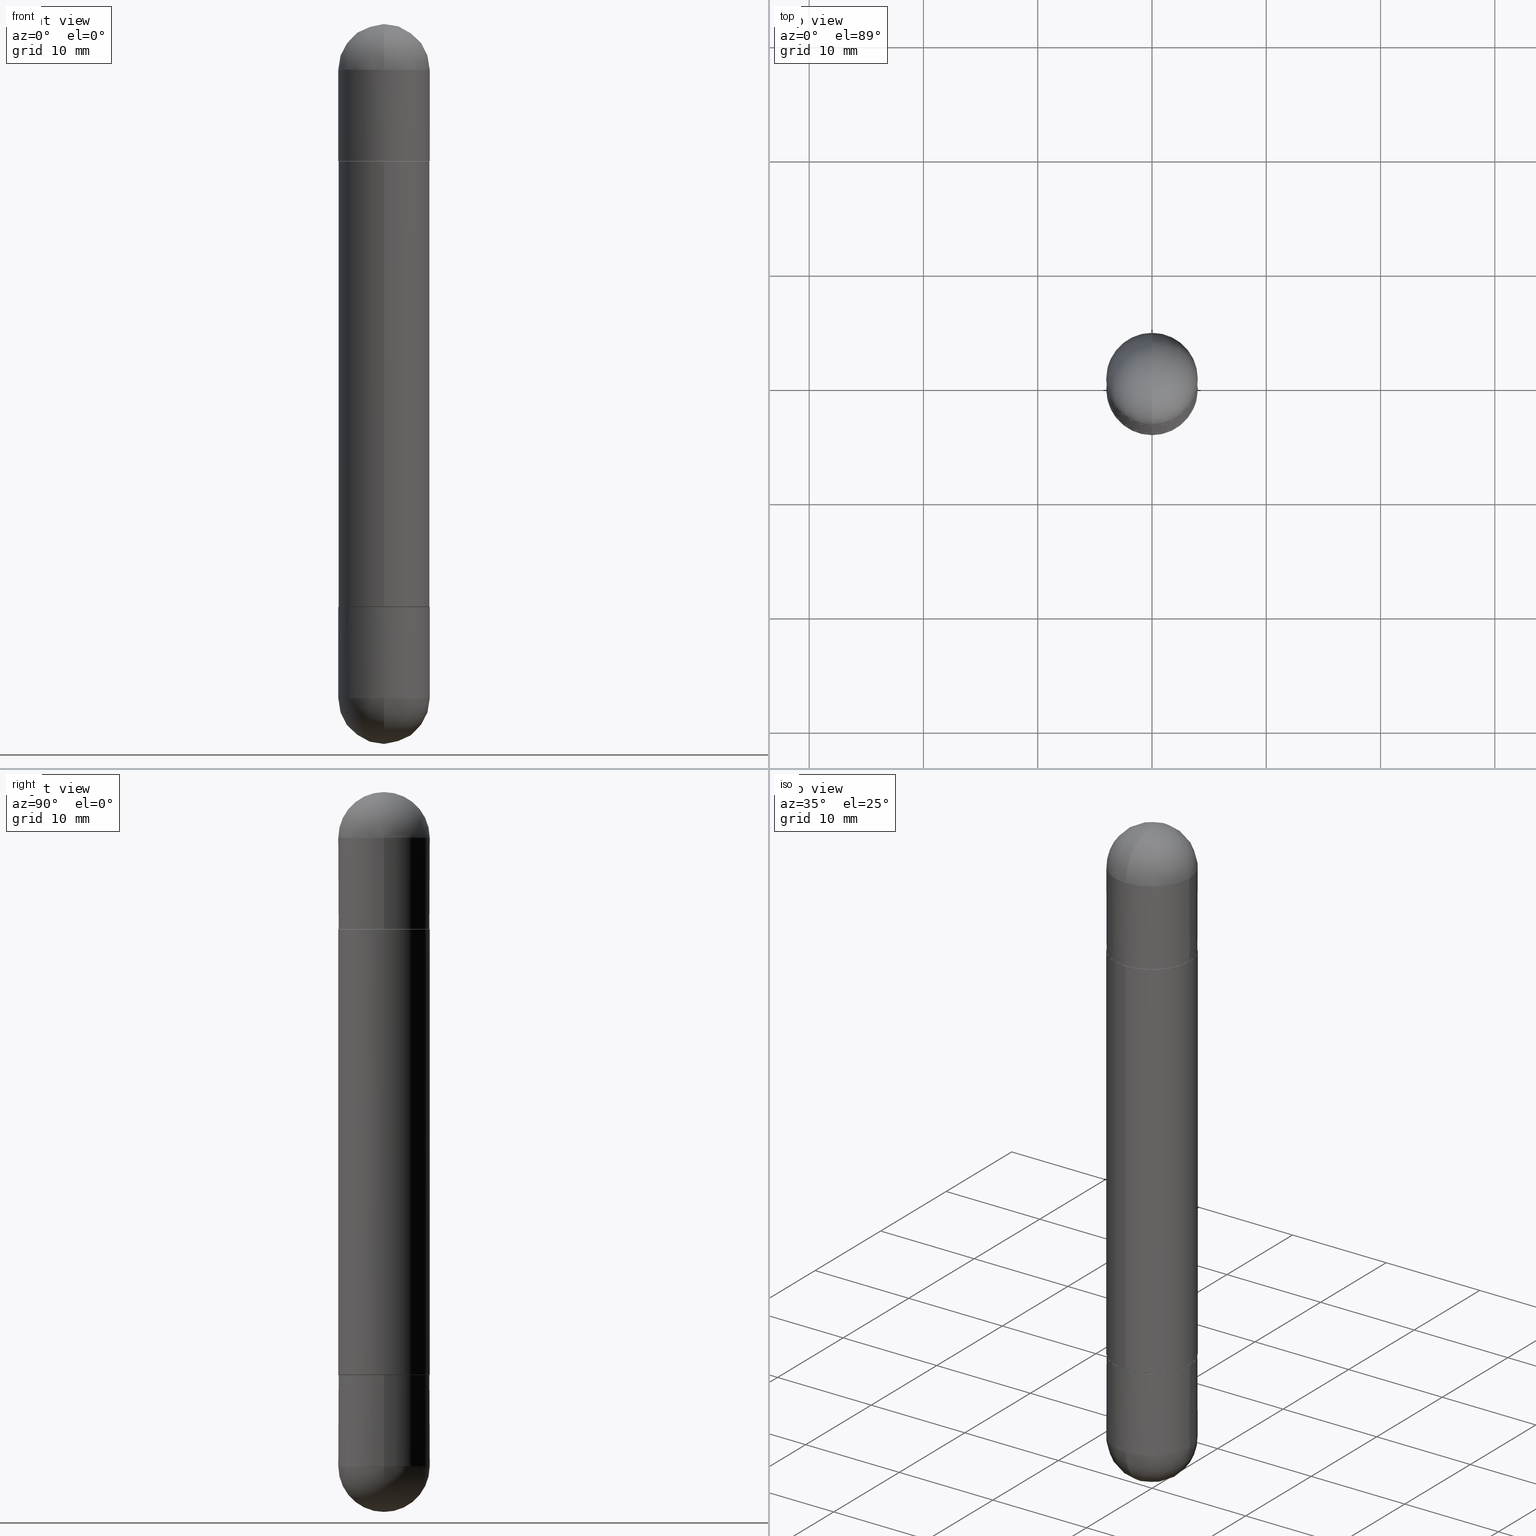
[diagram: canonical four-view strip — front | top / right | iso, engineering-drawing reading convention]
A machine part, canonical four-view strip (front | top / right | iso — engineering-drawing reading convention). The complete STEP part file that produces these views, byte-faithful:
ISO-10303-21;
HEADER;
FILE_DESCRIPTION (( 'STEP AP203' ),
    '1' );
FILE_NAME ('48979.STEP',
    '2024-03-01T12:48:31',
    ( '' ),
    ( '' ),
    'SwSTEP 2.0',
    'SolidWorks 2023',
    '' );
FILE_SCHEMA (( 'CONFIG_CONTROL_DESIGN' ));
ENDSEC;

DATA;
#1 = ORIENTED_EDGE ( 'NONE', *, *, #438, .T. ) ;
#2 = LINE ( 'NONE', #706, #281 ) ;
#3 = CARTESIAN_POINT ( 'NONE',  ( 3.032892176180250989E-29, -4.329754314344569209E-15, -1.240150000000000086 ) ) ;
#4 = EDGE_CURVE ( 'NONE', #603, #650, #86, .T. ) ;
#5 = EDGE_CURVE ( 'NONE', #521, #134, #692, .T. ) ;
#6 = ORIENTED_EDGE ( 'NONE', *, *, #216, .T. ) ;
#7 = COORDINATED_UNIVERSAL_TIME_OFFSET ( 5, 0, .BEHIND. ) ;
#8 = ORIENTED_EDGE ( 'NONE', *, *, #477, .F. ) ;
#9 = CARTESIAN_POINT ( 'NONE',  ( -1.092833659057851571E-15, -0.1565000000000069946, -0.4724000000000004307 ) ) ;
#10 = CARTESIAN_POINT ( 'NONE',  ( 4.910490021813754139E-29, -7.010211416177447985E-15, -0.4723999999999998756 ) ) ;
#11 = CIRCLE ( 'NONE', #390, 0.1565000000000000002 ) ;
#12 = AXIS2_PLACEMENT_3D ( 'NONE', #668, #42, #229 ) ;
#13 = DIRECTION ( 'NONE',  ( 2.445468806185136597E-29, -3.491481338843145583E-15, 1.000000000000000000 ) ) ;
#14 = APPROVAL_STATUS ( 'not_yet_approved' ) ;
#15 = CIRCLE ( 'NONE', #725, 0.1575000000000000011 ) ;
#16 = DIRECTION ( 'NONE',  ( -2.445584950352982136E-29, 3.491315013784275228E-15, -1.000000000000000000 ) ) ;
#17 = CARTESIAN_POINT ( 'NONE',  ( 0.1575000000000000011, -1.099816621735586889E-15, 7.679978421878598033E-30 ) ) ;
#18 = DIRECTION ( 'NONE',  ( -2.445584950352982136E-29, 3.491315013784275228E-15, -1.000000000000000000 ) ) ;
#19 =( NAMED_UNIT ( * ) SI_UNIT ( $, .STERADIAN. ) SOLID_ANGLE_UNIT ( ) );
#20 = DIRECTION ( 'NONE',  ( 2.445468806185136597E-29, -3.491481338843145583E-15, 1.000000000000000000 ) ) ;
#21 = VERTEX_POINT ( 'NONE', #721 ) ;
#22 = DIRECTION ( 'NONE',  ( 6.982962677686265133E-15, 1.000000000000000000, 3.469013325287949743E-15 ) ) ;
#23 = ADVANCED_FACE ( 'NONE', ( #152 ), #714, .T. ) ;
#24 = CIRCLE ( 'NONE', #142, 0.1575000000000000011 ) ;
#25 = VERTEX_POINT ( 'NONE', #147 ) ;
#26 = CIRCLE ( 'NONE', #576, 0.1575000000000000011 ) ;
#27 = ORIENTED_EDGE ( 'NONE', *, *, #548, .T. ) ;
#28 = VECTOR ( 'NONE', #645, 39.37007874015748143 ) ;
#29 = DIRECTION ( 'NONE',  ( 1.000000000000000000, -6.982962677686268288E-15, 0.000000000000000000 ) ) ;
#30 = EDGE_LOOP ( 'NONE', ( #815, #786 ) ) ;
#31 = FACE_OUTER_BOUND ( 'NONE', #393, .T. ) ;
#32 = DIRECTION ( 'NONE',  ( -1.000000000000000000, 6.982962677686265922E-15, 4.883557194083112340E-29 ) ) ;
#33 = CARTESIAN_POINT ( 'NONE',  ( 0.000000000000000000, 0.000000000000000000, 0.000000000000000000 ) ) ;
#34 = EDGE_CURVE ( 'NONE', #801, #669, #624, .T. ) ;
#35 = CARTESIAN_POINT ( 'NONE',  ( -1.092833659057851571E-15, -0.1565000000000069946, -0.4724000000000004307 ) ) ;
#36 = DIRECTION ( 'NONE',  ( -2.445468806185136597E-29, 3.491481338843145583E-15, 1.000000000000000000 ) ) ;
#37 = ORIENTED_EDGE ( 'NONE', *, *, #664, .F. ) ;
#38 = CIRCLE ( 'NONE', #424, 0.1575000000000001399 ) ;
#39 = DIRECTION ( 'NONE',  ( 1.000000000000000000, -6.982962677686268288E-15, 0.000000000000000000 ) ) ;
#40 = CARTESIAN_POINT ( 'NONE',  ( -0.1575000000000000011, -6.479750682414990676E-15, -0.1575000000000001676 ) ) ;
#41 = MANIFOLD_SOLID_BREP ( 'Mirror4[4]', #412 ) ;
#42 = DIRECTION ( 'NONE',  ( -2.445584950352982136E-29, 3.491315013784275228E-15, -1.000000000000000000 ) ) ;
#43 = ADVANCED_FACE ( 'NONE', ( #635 ), #640, .F. ) ;
#44 = ORIENTED_EDGE ( 'NONE', *, *, #536, .T. ) ;
#45 = AXIS2_PLACEMENT_3D ( 'NONE', #33, #36, #745 ) ;
#46 = DIRECTION ( 'NONE',  ( 1.000000000000000000, -6.982962677686265133E-15, -4.883557194083112901E-29 ) ) ;
#47 = VECTOR ( 'NONE', #269, 39.37007874015748143 ) ;
#48 = CARTESIAN_POINT ( 'NONE',  ( 4.910490021813754139E-29, -7.010211416177447985E-15, -0.4723999999999998756 ) ) ;
#49 = ORIENTED_EDGE ( 'NONE', *, *, #800, .F. ) ;
#50 = ORIENTED_EDGE ( 'NONE', *, *, #548, .F. ) ;
#51 = VERTEX_POINT ( 'NONE', #335 ) ;
#52 = ORIENTED_EDGE ( 'NONE', *, *, #664, .T. ) ;
#53 = DIRECTION ( 'NONE',  ( -6.982962677686265922E-15, -1.000000000000000000, -3.491179544618866730E-15 ) ) ;
#54 = DIRECTION ( 'NONE',  ( 2.438088387897960049E-29, -3.491481338843145188E-15, -1.000000000000000000 ) ) ;
#55 = MANIFOLD_SOLID_BREP ( 'Body-Move/Copy2[1]', #777 ) ;
#56 = VERTEX_POINT ( 'NONE', #587 ) ;
#57 = EDGE_LOOP ( 'NONE', ( #670, #50, #396, #369 ) ) ;
#58 = ADVANCED_FACE ( 'NONE', ( #31 ), #525, .T. ) ;
#59 = DIRECTION ( 'NONE',  ( 1.000000000000000000, -6.982962677686268288E-15, 0.000000000000000000 ) ) ;
#60 = PRODUCT_RELATED_PRODUCT_CATEGORY ( 'detail', '', ( #104 ) ) ;
#61 = CYLINDRICAL_SURFACE ( 'NONE', #655, 0.1575000000000001399 ) ;
#62 = ORIENTED_EDGE ( 'NONE', *, *, #5, .T. ) ;
#63 = DIRECTION ( 'NONE',  ( -2.445468806185136877E-29, 3.491481338843145188E-15, -1.000000000000000000 ) ) ;
#64 = CARTESIAN_POINT ( 'NONE',  ( 0.000000000000000000, 0.000000000000000000, -2.480300000000000171 ) ) ;
#65 = CIRCLE ( 'NONE', #403, 0.1565000000000000002 ) ;
#66 = ORIENTED_EDGE ( 'NONE', *, *, #529, .T. ) ;
#67 = CYLINDRICAL_SURFACE ( 'NONE', #154, 0.1575000000000000011 ) ;
#68 = EDGE_CURVE ( 'NONE', #56, #348, #292, .T. ) ;
#69 = CARTESIAN_POINT ( 'NONE',  ( 5.680334943006836279E-29, -8.110012853864858834E-15, -2.322799999999999976 ) ) ;
#70 = EDGE_LOOP ( 'NONE', ( #805, #748 ) ) ;
#71 = APPROVAL_DATE_TIME ( #627, #334 ) ;
#72 = DIRECTION ( 'NONE',  ( -2.445468806185136597E-29, 3.491481338843145583E-15, -1.000000000000000000 ) ) ;
#73 = VERTEX_POINT ( 'NONE', #212 ) ;
#74 = DATE_AND_TIME ( #621, #296 ) ;
#75 = DIRECTION ( 'NONE',  ( 4.851104656540714206E-15, 0.7071067811865135999, -0.7071067811865812125 ) ) ;
#76 = DIRECTION ( 'NONE',  ( -6.982962677686265133E-15, -1.000000000000000000, -3.469013325287950138E-15 ) ) ;
#77 = AXIS2_PLACEMENT_3D ( 'NONE', #551, #113, #610 ) ;
#78 = ADVANCED_FACE ( 'NONE', ( #615 ), #535, .F. ) ;
#79 = VECTOR ( 'NONE', #300, 39.37007874015748143 ) ;
#80 = CARTESIAN_POINT ( 'NONE',  ( 1.099816621735635798E-15, 0.1574999999999930067, -0.4723999999999995980 ) ) ;
#81 = CARTESIAN_POINT ( 'NONE',  ( 3.032892176180250989E-29, -4.329754314344569209E-15, -1.240150000000000086 ) ) ;
#82 = DIRECTION ( 'NONE',  ( 1.000000000000000000, -6.982962677686268288E-15, 0.000000000000000000 ) ) ;
#83 = ADVANCED_FACE ( 'NONE', ( #803 ), #364, .T. ) ;
#84 = CARTESIAN_POINT ( 'NONE',  ( 0.1575000000000000011, -1.099816621735586889E-15, -2.480300000000000171 ) ) ;
#85 = ORIENTED_EDGE ( 'NONE', *, *, #611, .F. ) ;
#86 = LINE ( 'NONE', #718, #441 ) ;
#87 = CARTESIAN_POINT ( 'NONE',  ( 5.741110936594397103E-29, -9.124459439329419387E-15, -2.480300000000000171 ) ) ;
#88 = ORIENTED_EDGE ( 'NONE', *, *, #274, .T. ) ;
#89 = AXIS2_PLACEMENT_3D ( 'NONE', #343, #659, #39 ) ;
#90 = FACE_OUTER_BOUND ( 'NONE', #487, .T. ) ;
#91 = ADVANCED_FACE ( 'NONE', ( #729 ), #423, .F. ) ;
#92 = FACE_OUTER_BOUND ( 'NONE', #30, .T. ) ;
#93 = CARTESIAN_POINT ( 'NONE',  ( 4.908044436863399835E-29, -7.006720101163662499E-15, -0.4734000000000002095 ) ) ;
#94 = CARTESIAN_POINT ( 'NONE',  ( 1.099816621735642503E-15, 0.1574999999999917577, -2.322800000000000864 ) ) ;
#95 = EDGE_LOOP ( 'NONE', ( #498, #66, #574, #303 ) ) ;
#96 = ADVANCED_FACE ( 'NONE', ( #421 ), #277, .F. ) ;
#97 = AXIS2_PLACEMENT_3D ( 'NONE', #251, #141, #519 ) ;
#98 = AXIS2_PLACEMENT_3D ( 'NONE', #530, #586, #285 ) ;
#99 = CARTESIAN_POINT ( 'NONE',  ( -0.1575000000000000011, 1.080528434649016174E-15, -2.480300000000000171 ) ) ;
#100 = ADVANCED_FACE ( 'NONE', ( #305 ), #256, .T. ) ;
#101 = CARTESIAN_POINT ( 'NONE',  ( -1.099816621735547840E-15, -0.1575000000000044698, -1.240150000000000086 ) ) ;
#102 = APPLICATION_CONTEXT ( 'configuration controlled 3d designs of mechanical parts and assemblies' ) ;
#103 = VERTEX_POINT ( 'NONE', #357 ) ;
#104 = PRODUCT ( '48979', '48979', '', ( #553 ) ) ;
#105 = DIRECTION ( 'NONE',  ( -2.445584950352982136E-29, 3.491315013784275228E-15, 1.000000000000000000 ) ) ;
#106 = ORIENTED_EDGE ( 'NONE', *, *, #582, .T. ) ;
#107 = CARTESIAN_POINT ( 'NONE',  ( -1.099816621735539754E-15, -0.1575000000000072453, -0.4734000000000007646 ) ) ;
#108 = ORIENTED_EDGE ( 'NONE', *, *, #321, .F. ) ;
#109 = CIRCLE ( 'NONE', #762, 0.1575000000000000011 ) ;
#110 = CARTESIAN_POINT ( 'NONE',  ( 4.910256815939136430E-29, -7.010545380263152499E-15, -0.4724000000000001531 ) ) ;
#111 = ORIENTED_EDGE ( 'NONE', *, *, #520, .T. ) ;
#112 = AXIS2_PLACEMENT_3D ( 'NONE', #629, #810, #264 ) ;
#113 = DIRECTION ( 'NONE',  ( 1.000000000000000000, -6.982962677686265922E-15, 4.883557194083112340E-29 ) ) ;
#114 = CC_DESIGN_APPROVAL ( #334, ( #814 ) ) ;
#115 = EDGE_CURVE ( 'NONE', #669, #543, #24, .T. ) ;
#116 = ORIENTED_EDGE ( 'NONE', *, *, #205, .F. ) ;
#117 = DIRECTION ( 'NONE',  ( 1.000000000000000000, -6.860497997771530774E-15, -4.840798879624142912E-29 ) ) ;
#118 = DIRECTION ( 'NONE',  ( 1.000000000000000000, -6.982962677686268288E-15, 0.000000000000000000 ) ) ;
#119 = ORIENTED_EDGE ( 'NONE', *, *, #170, .F. ) ;
#120 = CARTESIAN_POINT ( 'NONE',  ( 0.000000000000000000, 0.000000000000000000, 0.000000000000000000 ) ) ;
#121 = FACE_OUTER_BOUND ( 'NONE', #261, .T. ) ;
#122 = CARTESIAN_POINT ( 'NONE',  ( 1.080528434649016963E-15, 0.1575000000000001399, -2.480299999999999727 ) ) ;
#123 = ORIENTED_EDGE ( 'NONE', *, *, #149, .F. ) ;
#124 = APPROVAL_STATUS ( 'not_yet_approved' ) ;
#125 = LINE ( 'NONE', #140, #482 ) ;
#126 = CARTESIAN_POINT ( 'NONE',  ( 0.000000000000000000, 0.000000000000000000, -2.480300000000000171 ) ) ;
#127 = VECTOR ( 'NONE', #183, 39.37007874015748143 ) ;
#128 = CIRCLE ( 'NONE', #679, 0.1575000000000002232 ) ;
#129 = ORIENTED_EDGE ( 'NONE', *, *, #811, .T. ) ;
#130 = DATE_AND_TIME ( #202, #282 ) ;
#131 = FACE_OUTER_BOUND ( 'NONE', #185, .T. ) ;
#132 = EDGE_CURVE ( 'NONE', #492, #196, #151, .T. ) ;
#133 = CARTESIAN_POINT ( 'NONE',  ( 0.000000000000000000, 0.000000000000000000, -2.480300000000000171 ) ) ;
#134 = VERTEX_POINT ( 'NONE', #596 ) ;
#135 = DIRECTION ( 'NONE',  ( -2.445584950352982136E-29, 3.491315013784275228E-15, -1.000000000000000000 ) ) ;
#136 = FACE_OUTER_BOUND ( 'NONE', #557, .T. ) ;
#137 = VERTEX_POINT ( 'NONE', #107 ) ;
#138 = SECURITY_CLASSIFICATION_LEVEL ( 'unclassified' ) ;
#139 = ORIENTED_EDGE ( 'NONE', *, *, #170, .T. ) ;
#140 = CARTESIAN_POINT ( 'NONE',  ( 0.1575000000000000011, -1.099816621735586889E-15, -2.480300000000000171 ) ) ;
#141 = DIRECTION ( 'NONE',  ( -2.445468806185136597E-29, 3.491481338843145583E-15, 1.000000000000000000 ) ) ;
#142 = AXIS2_PLACEMENT_3D ( 'NONE', #675, #428, #118 ) ;
#143 = CIRCLE ( 'NONE', #227, 0.1575000000000001676 ) ;
#144 = ADVANCED_FACE ( 'NONE', ( #531 ), #660, .T. ) ;
#145 = ORIENTED_EDGE ( 'NONE', *, *, #4, .F. ) ;
#146 = DIRECTION ( 'NONE',  ( 2.445584950352982136E-29, -3.491315013784275228E-15, 1.000000000000000000 ) ) ;
#147 = CARTESIAN_POINT ( 'NONE',  ( 0.1575000000000000011, -8.660095738799594725E-15, -2.322799999999999976 ) ) ;
#148 = CARTESIAN_POINT ( 'NONE',  ( 4.910490021813754139E-29, -7.010211416177447985E-15, -0.4723999999999998756 ) ) ;
#149 = EDGE_CURVE ( 'NONE', #526, #240, #11, .T. ) ;
#150 = FACE_OUTER_BOUND ( 'NONE', #70, .T. ) ;
#151 = CIRCLE ( 'NONE', #77, 0.1575000000000001676 ) ;
#152 = FACE_OUTER_BOUND ( 'NONE', #233, .T. ) ;
#153 = AXIS2_PLACEMENT_3D ( 'NONE', #682, #367, #245 ) ;
#154 = AXIS2_PLACEMENT_3D ( 'NONE', #243, #768, #701 ) ;
#155 = SPHERICAL_SURFACE ( 'NONE', #491, 0.1575000000000001676 ) ;
#156 = DIRECTION ( 'NONE',  ( -6.982962677686265922E-15, -1.000000000000000000, -3.491315013784275228E-15 ) ) ;
#157 = EDGE_LOOP ( 'NONE', ( #272, #111, #508, #564, #291 ) ) ;
#158 = DIRECTION ( 'NONE',  ( 1.000000000000000000, -6.982962677686268288E-15, 0.000000000000000000 ) ) ;
#159 = LINE ( 'NONE', #99, #79 ) ;
#160 = ADVANCED_FACE ( 'NONE', ( #788 ), #61, .T. ) ;
#161 = VERTEX_POINT ( 'NONE', #280 ) ;
#162 = CIRCLE ( 'NONE', #308, 0.1575000000000000011 ) ;
#163 = CONICAL_SURFACE ( 'NONE', #294, 0.1565000000000000002, 0.7853981633973970977 ) ;
#164 = DIRECTION ( 'NONE',  ( -6.982962677686265922E-15, -1.000000000000000000, -3.469013325287948560E-15 ) ) ;
#165 = LOCAL_TIME ( 7, 48, 31.00000000000000000, #370 ) ;
#166 = ORIENTED_EDGE ( 'NONE', *, *, #568, .F. ) ;
#167 = CARTESIAN_POINT ( 'NONE',  ( 4.910490021813754139E-29, -7.010211416177447985E-15, -2.007900000000000240 ) ) ;
#168 = CARTESIAN_POINT ( 'NONE',  ( 4.908044436863399835E-29, -7.006720101163662499E-15, -2.006899999999999906 ) ) ;
#169 = CARTESIAN_POINT ( 'NONE',  ( 4.910490021813753578E-29, -7.010211416177447196E-15, -0.4724000000000001531 ) ) ;
#170 = EDGE_CURVE ( 'NONE', #569, #475, #469, .T. ) ;
#171 = ORIENTED_EDGE ( 'NONE', *, *, #638, .T. ) ;
#172 = DIRECTION ( 'NONE',  ( -1.000000000000000000, 6.982962677686265922E-15, 4.883557194083112340E-29 ) ) ;
#173 = EDGE_LOOP ( 'NONE', ( #145, #383, #588, #430, #322 ) ) ;
#174 = EDGE_LOOP ( 'NONE', ( #620, #354, #44, #716 ) ) ;
#175 = AXIS2_PLACEMENT_3D ( 'NONE', #513, #201, #452 ) ;
#176 = DIRECTION ( 'NONE',  ( 6.982962677686265133E-15, 1.000000000000000000, 3.469013325287949743E-15 ) ) ;
#177 = AXIS2_PLACEMENT_3D ( 'NONE', #110, #614, #681 ) ;
#178 = DIRECTION ( 'NONE',  ( -6.982962677686265922E-15, -1.000000000000000000, 3.491179544618866730E-15 ) ) ;
#179 = EDGE_LOOP ( 'NONE', ( #496, #753 ) ) ;
#180 = DATE_AND_TIME ( #440, #560 ) ;
#181 = CARTESIAN_POINT ( 'NONE',  ( 1.073667936651293668E-15, 0.1564999999999929781, -0.4723999999999993205 ) ) ;
#182 = ADVANCED_BREP_SHAPE_REPRESENTATION ( '48979', ( #55, #606, #319, #41, #314, #667 ), #602 ) ;
#183 = DIRECTION ( 'NONE',  ( -2.445468806185136877E-29, 3.491481338843145188E-15, 1.000000000000000000 ) ) ;
#184 = EDGE_CURVE ( 'NONE', #478, #663, #143, .T. ) ;
#185 = EDGE_LOOP ( 'NONE', ( #119, #171, #211, #206 ) ) ;
#186 = LENGTH_MEASURE_WITH_UNIT ( LENGTH_MEASURE( 0.02539999999999999897 ), #817 );
#187 = APPROVAL ( #323, 'UNSPECIFIED' ) ;
#188 = DIRECTION ( 'NONE',  ( -2.445584950352982136E-29, 3.491315013784275228E-15, -1.000000000000000000 ) ) ;
#189 = EDGE_LOOP ( 'NONE', ( #328, #439, #368, #1, #88 ) ) ;
#190 = APPLICATION_PROTOCOL_DEFINITION ( 'international standard', 'config_control_design', 1994, #102 ) ;
#191 = ADVANCED_FACE ( 'NONE', ( #92 ), #472, .F. ) ;
#192 = CARTESIAN_POINT ( 'NONE',  ( 1.115552095143406798E-15, 0.1564999999999929781, -2.007900000000001128 ) ) ;
#193 = DIRECTION ( 'NONE',  ( -2.445468806185136597E-29, 3.491481338843145583E-15, -1.000000000000000000 ) ) ;
#194 = VECTOR ( 'NONE', #458, 39.37007874015748143 ) ;
#195 = AXIS2_PLACEMENT_3D ( 'NONE', #93, #146, #220 ) ;
#196 = VERTEX_POINT ( 'NONE', #94 ) ;
#197 = DATE_TIME_ROLE ( 'creation_date' ) ;
#198 = ORIENTED_EDGE ( 'NONE', *, *, #382, .T. ) ;
#199 = CARTESIAN_POINT ( 'NONE',  ( 4.910490021813754139E-29, -7.010211416177447985E-15, -2.007900000000000240 ) ) ;
#200 = CARTESIAN_POINT ( 'NONE',  ( 1.099816621735635798E-15, 0.1574999999999930067, -0.4723999999999995980 ) ) ;
#201 = DIRECTION ( 'NONE',  ( 1.000000000000000000, -6.982962677686265133E-15, -4.883557194083112901E-29 ) ) ;
#202 = CALENDAR_DATE ( 2024, 1, 3 ) ;
#203 = CARTESIAN_POINT ( 'NONE',  ( 1.073667936651293668E-15, 0.1564999999999929781, -0.4723999999999993205 ) ) ;
#204 = DIRECTION ( 'NONE',  ( 2.438088387897960049E-29, -3.491481338843145188E-15, 1.000000000000000000 ) ) ;
#205 = EDGE_CURVE ( 'NONE', #492, #215, #258, .T. ) ;
#206 = ORIENTED_EDGE ( 'NONE', *, *, #776, .F. ) ;
#207 = DIRECTION ( 'NONE',  ( 2.445468806185136597E-29, -3.491481338843145583E-15, 1.000000000000000000 ) ) ;
#208 = AXIS2_PLACEMENT_3D ( 'NONE', #278, #473, #720 ) ;
#209 = CARTESIAN_POINT ( 'NONE',  ( 4.910256815939136430E-29, -7.010545380263152499E-15, -0.4724000000000001531 ) ) ;
#210 = DIRECTION ( 'NONE',  ( 6.982962677686265133E-15, 1.000000000000000000, -3.469013325287949743E-15 ) ) ;
#211 = ORIENTED_EDGE ( 'NONE', *, *, #347, .F. ) ;
#212 = CARTESIAN_POINT ( 'NONE',  ( -1.092833659057851571E-15, -0.1565000000000069946, -2.007899999999999796 ) ) ;
#213 = ORIENTED_EDGE ( 'NONE', *, *, #719, .T. ) ;
#214 = FACE_OUTER_BOUND ( 'NONE', #715, .T. ) ;
#215 = VERTEX_POINT ( 'NONE', #474 ) ;
#216 = EDGE_CURVE ( 'NONE', #313, #252, #360, .T. ) ;
#217 = CARTESIAN_POINT ( 'NONE',  ( 5.680334943006836279E-29, -8.110012853864858834E-15, -0.1575000000000001676 ) ) ;
#218 = AXIS2_PLACEMENT_3D ( 'NONE', #707, #20, #437 ) ;
#219 = DIRECTION ( 'NONE',  ( 0.000000000000000000, 0.000000000000000000, 1.000000000000000000 ) ) ;
#220 = DIRECTION ( 'NONE',  ( -6.982962677686265922E-15, -1.000000000000000000, -3.469013325287948560E-15 ) ) ;
#221 = DIRECTION ( 'NONE',  ( -7.105427357601000281E-15, -1.000000000000000000, 0.000000000000000000 ) ) ;
#222 = DIRECTION ( 'NONE',  ( 2.445584950352982136E-29, -3.491315013784275228E-15, 1.000000000000000000 ) ) ;
#223 = DESIGN_CONTEXT ( 'detailed design', #102, 'design' ) ;
#224 = EDGE_CURVE ( 'NONE', #25, #386, #818, .T. ) ;
#225 = SPHERICAL_SURFACE ( 'NONE', #228, 0.1575000000000001676 ) ;
#226 = CLOSED_SHELL ( 'NONE', ( #782, #467, #96, #507, #284, #160 ) ) ;
#227 = AXIS2_PLACEMENT_3D ( 'NONE', #486, #172, #404 ) ;
#228 = AXIS2_PLACEMENT_3D ( 'NONE', #743, #46, #176 ) ;
#229 = DIRECTION ( 'NONE',  ( -6.982962677686265922E-15, -1.000000000000000000, -3.491179544618866730E-15 ) ) ;
#230 = CC_DESIGN_APPROVAL ( #738, ( #479 ) ) ;
#231 = EDGE_CURVE ( 'NONE', #161, #528, #38, .T. ) ;
#232 = DIRECTION ( 'NONE',  ( -2.445584950352981856E-29, 3.491315013784275228E-15, -1.000000000000000000 ) ) ;
#233 = EDGE_LOOP ( 'NONE', ( #85, #456, #626, #708 ) ) ;
#234 = CARTESIAN_POINT ( 'NONE',  ( 4.910490021813753578E-29, -7.010211416177447196E-15, -2.007900000000000240 ) ) ;
#235 = ORIENTED_EDGE ( 'NONE', *, *, #539, .T. ) ;
#236 = ORIENTED_EDGE ( 'NONE', *, *, #477, .T. ) ;
#237 = CARTESIAN_POINT ( 'NONE',  ( -0.1575000000000000011, -6.441174308241848852E-15, -2.322799999999999976 ) ) ;
#238 = EDGE_LOOP ( 'NONE', ( #693, #483, #62, #570, #312 ) ) ;
#239 = CARTESIAN_POINT ( 'NONE',  ( 1.099816621735635798E-15, 0.1574999999999930067, -2.007900000000000684 ) ) ;
#240 = VERTEX_POINT ( 'NONE', #773 ) ;
#241 = PERSON_AND_ORGANIZATION ( #355, #592 ) ;
#242 = CIRCLE ( 'NONE', #746, 0.1575000000000000011 ) ;
#243 = CARTESIAN_POINT ( 'NONE',  ( 0.000000000000000000, 0.000000000000000000, -2.480300000000000171 ) ) ;
#244 = AXIS2_PLACEMENT_3D ( 'NONE', #480, #356, #164 ) ;
#245 = DIRECTION ( 'NONE',  ( 1.000000000000000000, -6.982962677686265922E-15, 0.000000000000000000 ) ) ;
#246 = ORIENTED_EDGE ( 'NONE', *, *, #515, .T. ) ;
#247 = DIRECTION ( 'NONE',  ( 1.000000000000000000, -6.982962677686268288E-15, 0.000000000000000000 ) ) ;
#248 = ADVANCED_FACE ( 'NONE', ( #583 ), #579, .T. ) ;
#249 = ORIENTED_EDGE ( 'NONE', *, *, #263, .T. ) ;
#250 = CARTESIAN_POINT ( 'NONE',  ( 5.680334943006836279E-29, -8.110012853864858834E-15, -0.1575000000000001676 ) ) ;
#251 = CARTESIAN_POINT ( 'NONE',  ( 0.000000000000000000, 0.000000000000000000, 0.000000000000000000 ) ) ;
#252 = VERTEX_POINT ( 'NONE', #326 ) ;
#253 = EDGE_LOOP ( 'NONE', ( #808, #742, #784, #236 ) ) ;
#254 = DIRECTION ( 'NONE',  ( 2.445468806185136597E-29, -3.491481338843145583E-15, 1.000000000000000000 ) ) ;
#255 = AXIS2_PLACEMENT_3D ( 'NONE', #275, #18, #266 ) ;
#256 = CONICAL_SURFACE ( 'NONE', #573, 0.1565000000000000002, 0.7853981633973970977 ) ;
#257 = DIRECTION ( 'NONE',  ( 1.000000000000000000, -6.982962677686265922E-15, 0.000000000000000000 ) ) ;
#258 = CIRCLE ( 'NONE', #350, 0.1575000000000001676 ) ;
#259 = AXIS2_PLACEMENT_3D ( 'NONE', #750, #755, #636 ) ;
#260 = ADVANCED_FACE ( 'NONE', ( #267 ), #391, .F. ) ;
#261 = EDGE_LOOP ( 'NONE', ( #52, #425, #395, #298 ) ) ;
#262 = APPROVAL_DATE_TIME ( #180, #738 ) ;
#263 = EDGE_CURVE ( 'NONE', #546, #51, #26, .T. ) ;
#264 = DIRECTION ( 'NONE',  ( -6.982962677686265922E-15, -1.000000000000000000, -3.491179544618866730E-15 ) ) ;
#265 = DIRECTION ( 'NONE',  ( -2.445584950352982136E-29, 3.491315013784275228E-15, 1.000000000000000000 ) ) ;
#266 = DIRECTION ( 'NONE',  ( -6.982962677686265133E-15, -1.000000000000000000, -3.469013325287950138E-15 ) ) ;
#267 = FACE_OUTER_BOUND ( 'NONE', #699, .T. ) ;
#268 = VERTEX_POINT ( 'NONE', #451 ) ;
#269 = DIRECTION ( 'NONE',  ( -2.445468806185136877E-29, 3.491481338843145188E-15, -1.000000000000000000 ) ) ;
#270 = CIRCLE ( 'NONE', #723, 0.1575000000000000011 ) ;
#271 = VECTOR ( 'NONE', #795, 39.37007874015748854 ) ;
#272 = ORIENTED_EDGE ( 'NONE', *, *, #34, .F. ) ;
#273 = DIRECTION ( 'NONE',  ( -1.000000000000000000, 6.982962677686265133E-15, -4.883557194083112901E-29 ) ) ;
#274 = EDGE_CURVE ( 'NONE', #103, #268, #612, .T. ) ;
#275 = CARTESIAN_POINT ( 'NONE',  ( 0.000000000000000000, 0.000000000000000000, -2.480300000000000171 ) ) ;
#276 = LINE ( 'NONE', #84, #47 ) ;
#277 = PLANE ( 'NONE',  #761 ) ;
#278 = CARTESIAN_POINT ( 'NONE',  ( 5.349215165092950032E-29, -8.584195222004910708E-15, -0.1574999999999998901 ) ) ;
#279 = AXIS2_PLACEMENT_3D ( 'NONE', #10, #769, #381 ) ;
#280 = CARTESIAN_POINT ( 'NONE',  ( 1.080528434649065872E-15, 0.1574999999999957823, -1.240150000000000086 ) ) ;
#281 = VECTOR ( 'NONE', #432, 39.37007874015748143 ) ;
#282 = LOCAL_TIME ( 7, 48, 31.00000000000000000, #497 ) ;
#283 = DIMENSIONAL_EXPONENTS ( 1.000000000000000000, 0.000000000000000000, 0.000000000000000000, 0.000000000000000000, 0.000000000000000000, 0.000000000000000000, 0.000000000000000000 ) ;
#284 = ADVANCED_FACE ( 'NONE', ( #136 ), #643, .T. ) ;
#285 = DIRECTION ( 'NONE',  ( -6.982962677686265922E-15, -1.000000000000000000, -3.491179544618866730E-15 ) ) ;
#286 = CARTESIAN_POINT ( 'NONE',  ( 5.349215165092950032E-29, -8.584195222004910708E-15, -0.1574999999999998901 ) ) ;
#287 = FACE_OUTER_BOUND ( 'NONE', #648, .T. ) ;
#288 = ORIENTED_EDGE ( 'NONE', *, *, #481, .T. ) ;
#289 = ADVANCED_FACE ( 'NONE', ( #647 ), #702, .T. ) ;
#290 = EDGE_CURVE ( 'NONE', #196, #603, #589, .T. ) ;
#291 = ORIENTED_EDGE ( 'NONE', *, *, #115, .F. ) ;
#292 = CIRCLE ( 'NONE', #401, 0.1565000000000000002 ) ;
#293 = AXIS2_PLACEMENT_3D ( 'NONE', #807, #751, #793 ) ;
#294 = AXIS2_PLACEMENT_3D ( 'NONE', #199, #389, #578 ) ;
#295 = DIRECTION ( 'NONE',  ( -6.982962677686265922E-15, -1.000000000000000000, 3.491179544618866730E-15 ) ) ;
#296 = LOCAL_TIME ( 7, 48, 31.00000000000000000, #453 ) ;
#297 = DIRECTION ( 'NONE',  ( 2.445584950352982136E-29, -3.491315013784275228E-15, 1.000000000000000000 ) ) ;
#298 = ORIENTED_EDGE ( 'NONE', *, *, #539, .F. ) ;
#299 = ORIENTED_EDGE ( 'NONE', *, *, #619, .F. ) ;
#300 = DIRECTION ( 'NONE',  ( -2.445468806185136877E-29, 3.491481338843145188E-15, -1.000000000000000000 ) ) ;
#301 = CARTESIAN_POINT ( 'NONE',  ( 0.000000000000000000, 0.000000000000000000, -1.240150000000000086 ) ) ;
#302 = ORIENTED_EDGE ( 'NONE', *, *, #115, .T. ) ;
#303 = ORIENTED_EDGE ( 'NONE', *, *, #673, .T. ) ;
#304 = CARTESIAN_POINT ( 'NONE',  ( -1.099816621735587677E-15, -0.1575000000000001399, -2.480300000000001059 ) ) ;
#305 = FACE_OUTER_BOUND ( 'NONE', #662, .T. ) ;
#306 = ORIENTED_EDGE ( 'NONE', *, *, #132, .T. ) ;
#307 = PERSON_AND_ORGANIZATION ( #355, #592 ) ;
#308 = AXIS2_PLACEMENT_3D ( 'NONE', #600, #523, #792 ) ;
#309 = EDGE_CURVE ( 'NONE', #21, #313, #686, .T. ) ;
#310 = CIRCLE ( 'NONE', #471, 0.1575000000000001676 ) ;
#311 = DIRECTION ( 'NONE',  ( -2.445468806185136597E-29, 3.491481338843145583E-15, 1.000000000000000000 ) ) ;
#312 = ORIENTED_EDGE ( 'NONE', *, *, #728, .F. ) ;
#313 = VERTEX_POINT ( 'NONE', #320 ) ;
#314 = MANIFOLD_SOLID_BREP ( 'Combine1', #709 ) ;
#315 = CARTESIAN_POINT ( 'NONE',  ( 0.000000000000000000, 0.000000000000000000, -2.480300000000000171 ) ) ;
#316 = CARTESIAN_POINT ( 'NONE',  ( 5.680334943006836279E-29, -8.110012853864858834E-15, -2.322799999999999976 ) ) ;
#317 = ORIENTED_EDGE ( 'NONE', *, *, #4, .T. ) ;
#318 = DIRECTION ( 'NONE',  ( -6.982962677686265922E-15, -1.000000000000000000, 3.469013325287948560E-15 ) ) ;
#319 = MANIFOLD_SOLID_BREP ( 'Mirror4[3]', #654 ) ;
#320 = CARTESIAN_POINT ( 'NONE',  ( 1.080528434649047531E-15, 0.1574999999999932287, -2.006900000000000794 ) ) ;
#321 = EDGE_CURVE ( 'NONE', #215, #25, #242, .T. ) ;
#322 = ORIENTED_EDGE ( 'NONE', *, *, #481, .F. ) ;
#323 = APPROVAL_STATUS ( 'not_yet_approved' ) ;
#324 = FACE_OUTER_BOUND ( 'NONE', #238, .T. ) ;
#325 = AXIS2_PLACEMENT_3D ( 'NONE', #3, #504, #445 ) ;
#326 = CARTESIAN_POINT ( 'NONE',  ( -1.099816621735539360E-15, -0.1575000000000072453, -2.006899999999999462 ) ) ;
#327 = VECTOR ( 'NONE', #450, 39.37007874015748143 ) ;
#328 = ORIENTED_EDGE ( 'NONE', *, *, #520, .F. ) ;
#329 = EDGE_LOOP ( 'NONE', ( #116, #306, #466, #108 ) ) ;
#330 = DIRECTION ( 'NONE',  ( -1.000000000000000000, 0.000000000000000000, 0.000000000000000000 ) ) ;
#331 = ORIENTED_EDGE ( 'NONE', *, *, #713, .T. ) ;
#332 = EDGE_CURVE ( 'NONE', #603, #215, #270, .T. ) ;
#333 = CARTESIAN_POINT ( 'NONE',  ( 4.910256815939136430E-29, -7.010545380263152499E-15, -2.007900000000000240 ) ) ;
#334 = APPROVAL ( #14, 'UNSPECIFIED' ) ;
#335 = CARTESIAN_POINT ( 'NONE',  ( -1.080528434648961545E-15, -0.1575000000000084388, -0.1575000000000007228 ) ) ;
#336 = ORIENTED_EDGE ( 'NONE', *, *, #529, .F. ) ;
#337 = CARTESIAN_POINT ( 'NONE',  ( 0.1575000000000000011, -8.110362001998739191E-15, -2.007900000000000240 ) ) ;
#338 = ADVANCED_FACE ( 'NONE', ( #572 ), #691, .T. ) ;
#339 = AXIS2_PLACEMENT_3D ( 'NONE', #168, #265, #517 ) ;
#340 = CIRCLE ( 'NONE', #780, 0.1575000000000000011 ) ;
#341 = DIRECTION ( 'NONE',  ( 2.445468806185136597E-29, -3.491481338843145583E-15, 1.000000000000000000 ) ) ;
#342 = ORIENTED_EDGE ( 'NONE', *, *, #611, .T. ) ;
#343 = CARTESIAN_POINT ( 'NONE',  ( 5.680334943006836279E-29, -8.110012853864858834E-15, -2.322799999999999976 ) ) ;
#344 = DIRECTION ( 'NONE',  ( -1.000000000000000000, 0.000000000000000000, 0.000000000000000000 ) ) ;
#345 = CARTESIAN_POINT ( 'NONE',  ( 5.741110936594397103E-29, -9.124459439329419387E-15, 2.731847993664263218E-16 ) ) ;
#346 = CARTESIAN_POINT ( 'NONE',  ( 5.349215165092950032E-29, -8.584195222004910708E-15, -2.322800000000000420 ) ) ;
#347 = EDGE_CURVE ( 'NONE', #528, #161, #376, .T. ) ;
#348 = VERTEX_POINT ( 'NONE', #760 ) ;
#349 = CARTESIAN_POINT ( 'NONE',  ( 5.349215165092950032E-29, -8.584195222004910708E-15, -0.1574999999999998901 ) ) ;
#350 = AXIS2_PLACEMENT_3D ( 'NONE', #346, #598, #221 ) ;
#351 = DIRECTION ( 'NONE',  ( -6.982962677686265922E-15, -1.000000000000000000, -3.469013325287948560E-15 ) ) ;
#352 = ADVANCED_FACE ( 'NONE', ( #634 ), #698, .T. ) ;
#353 = CARTESIAN_POINT ( 'NONE',  ( 4.910256815939136430E-29, -7.010545380263152499E-15, -2.007900000000000240 ) ) ;
#354 = ORIENTED_EDGE ( 'NONE', *, *, #767, .T. ) ;
#355 = PERSON ( 'UNSPECIFIED', 'UNSPECIFIED', 'UNSPECIFIED', ('UNSPECIFIED'), ('UNSPECIFIED'), ('UNSPECIFIED') ) ;
#356 = DIRECTION ( 'NONE',  ( 2.445584950352982136E-29, -3.491315013784275228E-15, 1.000000000000000000 ) ) ;
#357 = CARTESIAN_POINT ( 'NONE',  ( 0.1575000000000000011, -8.110362001998739191E-15, -0.4724000000000001531 ) ) ;
#358 = ADVANCED_FACE ( 'NONE', ( #511 ), #394, .T. ) ;
#359 = AXIS2_PLACEMENT_3D ( 'NONE', #316, #631, #433 ) ;
#360 = CIRCLE ( 'NONE', #339, 0.1575000000000002232 ) ;
#361 = VECTOR ( 'NONE', #540, 39.37007874015748143 ) ;
#362 = CARTESIAN_POINT ( 'NONE',  ( 5.349215165092950032E-29, -8.584195222004910708E-15, -0.1574999999999998901 ) ) ;
#363 = ORIENTED_EDGE ( 'NONE', *, *, #290, .F. ) ;
#364 = CYLINDRICAL_SURFACE ( 'NONE', #45, 0.1575000000000000011 ) ;
#365 = ORIENTED_EDGE ( 'NONE', *, *, #309, .F. ) ;
#366 = CARTESIAN_POINT ( 'NONE',  ( 4.910490021813754139E-29, -7.010211416177447985E-15, -0.4723999999999998756 ) ) ;
#367 = DIRECTION ( 'NONE',  ( -2.445468806185136597E-29, 3.491481338843145583E-15, -1.000000000000000000 ) ) ;
#368 = ORIENTED_EDGE ( 'NONE', *, *, #515, .F. ) ;
#369 = ORIENTED_EDGE ( 'NONE', *, *, #231, .F. ) ;
#370 = COORDINATED_UNIVERSAL_TIME_OFFSET ( 5, 0, .BEHIND. ) ;
#371 = ADVANCED_FACE ( 'NONE', ( #597 ), #155, .T. ) ;
#372 = LINE ( 'NONE', #203, #510 ) ;
#373 = DIRECTION ( 'NONE',  ( -2.445584950352982136E-29, 3.491315013784275228E-15, -1.000000000000000000 ) ) ;
#374 = EDGE_LOOP ( 'NONE', ( #106, #288 ) ) ;
#375 = PERSON_AND_ORGANIZATION ( #355, #592 ) ;
#376 = CIRCLE ( 'NONE', #325, 0.1575000000000001399 ) ;
#377 = AXIS2_PLACEMENT_3D ( 'NONE', #554, #571, #318 ) ;
#378 = CARTESIAN_POINT ( 'NONE',  ( 5.680334943006836279E-29, -8.110012853864858834E-15, -2.322799999999999976 ) ) ;
#379 = EDGE_LOOP ( 'NONE', ( #594, #317, #632, #778, #609 ) ) ;
#380 = SHAPE_DEFINITION_REPRESENTATION ( #562, #182 ) ;
#381 = DIRECTION ( 'NONE',  ( -6.982962677686265922E-15, -1.000000000000000000, -3.491179544618866730E-15 ) ) ;
#382 = EDGE_CURVE ( 'NONE', #651, #546, #813, .T. ) ;
#383 = ORIENTED_EDGE ( 'NONE', *, *, #332, .T. ) ;
#384 = CYLINDRICAL_SURFACE ( 'NONE', #644, 0.1575000000000001399 ) ;
#385 = DIRECTION ( 'NONE',  ( -0.000000000000000000, -0.000000000000000000, -1.000000000000000000 ) ) ;
#386 = VERTEX_POINT ( 'NONE', #337 ) ;
#387 = DIRECTION ( 'NONE',  ( -2.445468806185136877E-29, 3.491481338843145188E-15, 1.000000000000000000 ) ) ;
#388 = PERSON_AND_ORGANIZATION_ROLE ( 'creator' ) ;
#389 = DIRECTION ( 'NONE',  ( -2.445584950352982136E-29, 3.491315013784275228E-15, 1.000000000000000000 ) ) ;
#390 = AXIS2_PLACEMENT_3D ( 'NONE', #48, #297, #812 ) ;
#391 = PLANE ( 'NONE',  #542 ) ;
#392 = AXIS2_PLACEMENT_3D ( 'NONE', #169, #232, #672 ) ;
#393 = EDGE_LOOP ( 'NONE', ( #434, #683, #6, #49 ) ) ;
#394 = SPHERICAL_SURFACE ( 'NONE', #711, 0.1575000000000001676 ) ;
#395 = ORIENTED_EDGE ( 'NONE', *, *, #688, .F. ) ;
#396 = ORIENTED_EDGE ( 'NONE', *, *, #776, .T. ) ;
#397 = EDGE_CURVE ( 'NONE', #663, #801, #109, .T. ) ;
#398 = FACE_OUTER_BOUND ( 'NONE', #95, .T. ) ;
#399 = ORIENTED_EDGE ( 'NONE', *, *, #407, .T. ) ;
#400 = PLANE ( 'NONE',  #392 ) ;
#401 = AXIS2_PLACEMENT_3D ( 'NONE', #783, #518, #774 ) ;
#402 = AXIS2_PLACEMENT_3D ( 'NONE', #148, #724, #468 ) ;
#403 = AXIS2_PLACEMENT_3D ( 'NONE', #366, #222, #53 ) ;
#404 = DIRECTION ( 'NONE',  ( -6.982962677686265133E-15, -1.000000000000000000, 0.000000000000000000 ) ) ;
#405 = CARTESIAN_POINT ( 'NONE',  ( 0.1575000000000000011, -8.660095738799594725E-15, -0.1575000000000001676 ) ) ;
#406 = APPLICATION_CONTEXT ( 'configuration controlled 3d designs of mechanical parts and assemblies' ) ;
#407 = EDGE_CURVE ( 'NONE', #599, #651, #413, .T. ) ;
#408 = DIRECTION ( 'NONE',  ( -6.982962677686265922E-15, -1.000000000000000000, 3.491315013784275228E-15 ) ) ;
#409 = ORIENTED_EDGE ( 'NONE', *, *, #800, .T. ) ;
#410 = CARTESIAN_POINT ( 'NONE',  ( 5.349215165092950032E-29, -8.584195222004910708E-15, -0.1574999999999998901 ) ) ;
#411 = CARTESIAN_POINT ( 'NONE',  ( 4.908044436863399835E-29, -7.006720101163662499E-15, -0.4734000000000002095 ) ) ;
#412 = CLOSED_SHELL ( 'NONE', ( #144, #630, #23, #260, #352 ) ) ;
#413 = CIRCLE ( 'NONE', #533, 0.1575000000000001676 ) ;
#414 = EDGE_CURVE ( 'NONE', #348, #56, #457, .T. ) ;
#415 = CIRCLE ( 'NONE', #747, 0.1565000000000000002 ) ;
#416 = APPROVAL_PERSON_ORGANIZATION ( #641, #187, #754 ) ;
#417 = FACE_OUTER_BOUND ( 'NONE', #253, .T. ) ;
#418 = EDGE_CURVE ( 'NONE', #25, #196, #556, .T. ) ;
#419 = CARTESIAN_POINT ( 'NONE',  ( 1.080528434649016963E-15, 0.1575000000000001399, -2.480299999999999727 ) ) ;
#420 = UNCERTAINTY_MEASURE_WITH_UNIT (LENGTH_MEASURE( 1.000000000000000082E-05 ), #689, 'distance_accuracy_value', 'NONE');
#421 = FACE_OUTER_BOUND ( 'NONE', #179, .T. ) ;
#422 = CARTESIAN_POINT ( 'NONE',  ( 5.680334943006836279E-29, -8.110012853864858834E-15, -0.1575000000000001676 ) ) ;
#423 = PLANE ( 'NONE',  #677 ) ;
#424 = AXIS2_PLACEMENT_3D ( 'NONE', #81, #385, #330 ) ;
#425 = ORIENTED_EDGE ( 'NONE', *, *, #619, .T. ) ;
#426 = VECTOR ( 'NONE', #454, 39.37007874015748854 ) ;
#427 = CARTESIAN_POINT ( 'NONE',  ( 0.1575000000000000011, -8.660095738799594725E-15, -0.1575000000000001676 ) ) ;
#428 = DIRECTION ( 'NONE',  ( 2.445468806185136597E-29, -3.491481338843145583E-15, 1.000000000000000000 ) ) ;
#429 = EDGE_CURVE ( 'NONE', #348, #137, #595, .T. ) ;
#430 = ORIENTED_EDGE ( 'NONE', *, *, #224, .T. ) ;
#431 = PERSON_AND_ORGANIZATION ( #355, #592 ) ;
#432 = DIRECTION ( 'NONE',  ( -2.445584950352982136E-29, 3.491315013784275228E-15, -1.000000000000000000 ) ) ;
#433 = DIRECTION ( 'NONE',  ( 1.000000000000000000, -6.982962677686268288E-15, 0.000000000000000000 ) ) ;
#434 = ORIENTED_EDGE ( 'NONE', *, *, #536, .F. ) ;
#435 = COORDINATED_UNIVERSAL_TIME_OFFSET ( 5, 0, .BEHIND. ) ;
#436 = DIRECTION ( 'NONE',  ( -2.445584950352982136E-29, 3.491315013784275228E-15, 1.000000000000000000 ) ) ;
#437 = DIRECTION ( 'NONE',  ( 1.000000000000000000, -6.982962677686268288E-15, 0.000000000000000000 ) ) ;
#438 = EDGE_CURVE ( 'NONE', #543, #103, #276, .T. ) ;
#439 = ORIENTED_EDGE ( 'NONE', *, *, #397, .F. ) ;
#440 = CALENDAR_DATE ( 2024, 1, 3 ) ;
#441 = VECTOR ( 'NONE', #387, 39.37007874015748143 ) ;
#442 = ADVANCED_FACE ( 'NONE', ( #398 ), #532, .T. ) ;
#443 = AXIS2_PLACEMENT_3D ( 'NONE', #741, #726, #156 ) ;
#444 = AXIS2_PLACEMENT_3D ( 'NONE', #286, #117, #488 ) ;
#445 = DIRECTION ( 'NONE',  ( -1.000000000000000000, 0.000000000000000000, 0.000000000000000000 ) ) ;
#446 = LOCAL_TIME ( 7, 48, 31.00000000000000000, #435 ) ;
#447 = ORIENTED_EDGE ( 'NONE', *, *, #811, .F. ) ;
#448 = VERTEX_POINT ( 'NONE', #405 ) ;
#449 = PERSON_AND_ORGANIZATION_ROLE ( 'creator' ) ;
#450 = DIRECTION ( 'NONE',  ( -4.937700262164294818E-15, -0.7071067811865088260, -0.7071067811865862085 ) ) ;
#451 = CARTESIAN_POINT ( 'NONE',  ( -0.1575000000000000011, -6.479750682414989099E-15, -0.4724000000000001531 ) ) ;
#452 = DIRECTION ( 'NONE',  ( 6.982962677686265133E-15, 1.000000000000000000, 3.469013325287949743E-15 ) ) ;
#453 = COORDINATED_UNIVERSAL_TIME_OFFSET ( 5, 0, .BEHIND. ) ;
#454 = DIRECTION ( 'NONE',  ( 4.851104656540714206E-15, 0.7071067811865135999, -0.7071067811865812125 ) ) ;
#455 = DIRECTION ( 'NONE',  ( 2.445468806185136597E-29, -3.491481338843145583E-15, 1.000000000000000000 ) ) ;
#456 = ORIENTED_EDGE ( 'NONE', *, *, #184, .T. ) ;
#457 = CIRCLE ( 'NONE', #402, 0.1565000000000000002 ) ;
#458 = DIRECTION ( 'NONE',  ( -4.937700262164294818E-15, -0.7071067811865088260, -0.7071067811865862085 ) ) ;
#459 = CIRCLE ( 'NONE', #712, 0.1565000000000000002 ) ;
#460 = CC_DESIGN_APPROVAL ( #187, ( #766 ) ) ;
#461 = EDGE_CURVE ( 'NONE', #268, #103, #162, .T. ) ;
#462 = DIRECTION ( 'NONE',  ( 1.000000000000000000, -6.982962677686268288E-15, 0.000000000000000000 ) ) ;
#463 = CC_DESIGN_DATE_AND_TIME_ASSIGNMENT ( #130, #506, ( #766 ) ) ;
#464 = DIRECTION ( 'NONE',  ( -1.000000000000000000, 6.982962677686265133E-15, -4.883557194083112901E-29 ) ) ;
#465 = DIRECTION ( 'NONE',  ( 2.438088387897960049E-29, -3.491481338843145188E-15, 1.000000000000000000 ) ) ;
#466 = ORIENTED_EDGE ( 'NONE', *, *, #418, .F. ) ;
#467 = ADVANCED_FACE ( 'NONE', ( #90 ), #734, .T. ) ;
#468 = DIRECTION ( 'NONE',  ( -6.982962677686265922E-15, -1.000000000000000000, -3.491179544618866730E-15 ) ) ;
#469 = CIRCLE ( 'NONE', #293, 0.1575000000000002232 ) ;
#470 = CIRCLE ( 'NONE', #244, 0.1575000000000002232 ) ;
#471 = AXIS2_PLACEMENT_3D ( 'NONE', #362, #608, #740 ) ;
#472 = PLANE ( 'NONE',  #443 ) ;
#473 = DIRECTION ( 'NONE',  ( 1.000000000000000000, -6.982962677686265133E-15, -4.883557194083112901E-29 ) ) ;
#474 = CARTESIAN_POINT ( 'NONE',  ( -1.119104808822103172E-15, -0.1575000000000084388, -2.322799999999999532 ) ) ;
#475 = VERTEX_POINT ( 'NONE', #652 ) ;
#476 = CARTESIAN_POINT ( 'NONE',  ( -0.1575000000000000011, -6.441174308241848063E-15, -2.007900000000000240 ) ) ;
#477 = EDGE_CURVE ( 'NONE', #137, #21, #625, .T. ) ;
#478 = VERTEX_POINT ( 'NONE', #345 ) ;
#479 = PRODUCT_DEFINITION ( 'UNKNOWN', '', #814, #223 ) ;
#480 = CARTESIAN_POINT ( 'NONE',  ( 4.908044436863399835E-29, -7.006720101163662499E-15, -0.4734000000000002095 ) ) ;
#481 = EDGE_CURVE ( 'NONE', #650, #386, #613, .T. ) ;
#482 = VECTOR ( 'NONE', #63, 39.37007874015748143 ) ;
#483 = ORIENTED_EDGE ( 'NONE', *, *, #703, .T. ) ;
#484 = CARTESIAN_POINT ( 'NONE',  ( 1.099816621735642503E-15, 0.1574999999999917577, -0.1574999999999996125 ) ) ;
#485 = CARTESIAN_POINT ( 'NONE',  ( -0.1575000000000000011, -6.479750682414989099E-15, -0.4724000000000001531 ) ) ;
#486 = CARTESIAN_POINT ( 'NONE',  ( 5.349215165092950032E-29, -8.584195222004910708E-15, -0.1574999999999998901 ) ) ;
#487 = EDGE_LOOP ( 'NONE', ( #123, #757, #139, #616 ) ) ;
#488 = DIRECTION ( 'NONE',  ( 6.860497997771529985E-15, 1.000000000000000000, 0.000000000000000000 ) ) ;
#489 = ADVANCED_FACE ( 'NONE', ( #214 ), #590, .T. ) ;
#490 = DIRECTION ( 'NONE',  ( -2.445584950352982136E-29, 3.491315013784275228E-15, 1.000000000000000000 ) ) ;
#491 = AXIS2_PLACEMENT_3D ( 'NONE', #661, #273, #527 ) ;
#492 = VERTEX_POINT ( 'NONE', #87 ) ;
#493 = PERSON_AND_ORGANIZATION_ROLE ( 'design_owner' ) ;
#494 = LINE ( 'NONE', #181, #426 ) ;
#495 = DIRECTION ( 'NONE',  ( -2.445584950352982136E-29, 3.491315013784275228E-15, -1.000000000000000000 ) ) ;
#496 = ORIENTED_EDGE ( 'NONE', *, *, #347, .T. ) ;
#497 = COORDINATED_UNIVERSAL_TIME_OFFSET ( 5, 0, .BEHIND. ) ;
#498 = ORIENTED_EDGE ( 'NONE', *, *, #407, .F. ) ;
#499 = LINE ( 'NONE', #503, #28 ) ;
#500 = DIRECTION ( 'NONE',  ( -2.445468806185136597E-29, 3.491481338843145583E-15, 1.000000000000000000 ) ) ;
#501 = ORIENTED_EDGE ( 'NONE', *, *, #184, .F. ) ;
#502 = CALENDAR_DATE ( 2024, 1, 3 ) ;
#503 = CARTESIAN_POINT ( 'NONE',  ( -0.1575000000000000011, 1.080528434649016174E-15, -2.480300000000000171 ) ) ;
#504 = DIRECTION ( 'NONE',  ( -0.000000000000000000, -0.000000000000000000, -1.000000000000000000 ) ) ;
#505 = ORIENTED_EDGE ( 'NONE', *, *, #790, .F. ) ;
#506 = DATE_TIME_ROLE ( 'classification_date' ) ;
#507 = ADVANCED_FACE ( 'NONE', ( #150 ), #400, .F. ) ;
#508 = ORIENTED_EDGE ( 'NONE', *, *, #461, .T. ) ;
#509 = LINE ( 'NONE', #9, #327 ) ;
#510 = VECTOR ( 'NONE', #75, 39.37007874015748854 ) ;
#511 = FACE_OUTER_BOUND ( 'NONE', #581, .T. ) ;
#512 = APPROVAL_PERSON_ORGANIZATION ( #749, #738, #764 ) ;
#513 = CARTESIAN_POINT ( 'NONE',  ( 5.349215165092950032E-29, -8.584195222004910708E-15, -0.1574999999999998901 ) ) ;
#514 = APPROVAL_DATE_TIME ( #705, #187 ) ;
#515 = EDGE_CURVE ( 'NONE', #543, #663, #15, .T. ) ;
#516 = LINE ( 'NONE', #304, #577 ) ;
#517 = DIRECTION ( 'NONE',  ( -6.982962677686265922E-15, -1.000000000000000000, 3.469013325287948560E-15 ) ) ;
#518 = DIRECTION ( 'NONE',  ( 2.445584950352982136E-29, -3.491315013784275228E-15, 1.000000000000000000 ) ) ;
#519 = DIRECTION ( 'NONE',  ( 1.000000000000000000, -6.982962677686265922E-15, 4.876176775795935232E-29 ) ) ;
#520 = EDGE_CURVE ( 'NONE', #801, #268, #159, .T. ) ;
#521 = VERTEX_POINT ( 'NONE', #485 ) ;
#522 = AXIS2_PLACEMENT_3D ( 'NONE', #209, #13, #462 ) ;
#523 = DIRECTION ( 'NONE',  ( 2.445468806185136597E-29, -3.491481338843145583E-15, 1.000000000000000000 ) ) ;
#524 = CIRCLE ( 'NONE', #444, 0.1575000000000001676 ) ;
#525 = CYLINDRICAL_SURFACE ( 'NONE', #255, 0.1575000000000001399 ) ;
#526 = VERTEX_POINT ( 'NONE', #733 ) ;
#527 = DIRECTION ( 'NONE',  ( 6.982962677686265133E-15, 1.000000000000000000, -3.469013325287949743E-15 ) ) ;
#528 = VERTEX_POINT ( 'NONE', #101 ) ;
#529 = EDGE_CURVE ( 'NONE', #599, #51, #310, .T. ) ;
#530 = CARTESIAN_POINT ( 'NONE',  ( 4.910490021813754139E-29, -7.010211416177447985E-15, -0.4723999999999998756 ) ) ;
#531 = FACE_OUTER_BOUND ( 'NONE', #157, .T. ) ;
#532 = SPHERICAL_SURFACE ( 'NONE', #208, 0.1575000000000001676 ) ;
#533 = AXIS2_PLACEMENT_3D ( 'NONE', #349, #32, #781 ) ;
#534 = VECTOR ( 'NONE', #549, 39.37007874015748143 ) ;
#535 = PLANE ( 'NONE',  #639 ) ;
#536 = EDGE_CURVE ( 'NONE', #21, #137, #128, .T. ) ;
#537 = DIRECTION ( 'NONE',  ( -2.445468806185136597E-29, 3.491481338843145583E-15, 1.000000000000000000 ) ) ;
#538 = CARTESIAN_POINT ( 'NONE',  ( 1.111999381464605505E-15, 0.1564999999999929781, -2.007900000000001128 ) ) ;
#539 = EDGE_CURVE ( 'NONE', #73, #252, #666, .T. ) ;
#540 = DIRECTION ( 'NONE',  ( -2.445584950352982136E-29, 3.491315013784275228E-15, -1.000000000000000000 ) ) ;
#541 = AXIS2_PLACEMENT_3D ( 'NONE', #653, #341, #82 ) ;
#542 = AXIS2_PLACEMENT_3D ( 'NONE', #200, #204, #637 ) ;
#543 = VERTEX_POINT ( 'NONE', #427 ) ;
#544 = CARTESIAN_POINT ( 'NONE',  ( 1.080528434649066858E-15, 0.1574999999999932287, -0.4733999999999996544 ) ) ;
#545 = DIRECTION ( 'NONE',  ( -6.982962677686265133E-15, -1.000000000000000000, -3.469013325287950138E-15 ) ) ;
#546 = VERTEX_POINT ( 'NONE', #40 ) ;
#547 = ORIENTED_EDGE ( 'NONE', *, *, #703, .F. ) ;
#548 = EDGE_CURVE ( 'NONE', #475, #569, #470, .T. ) ;
#549 = DIRECTION ( 'NONE',  ( -4.937700262164294818E-15, -0.7071067811865088260, 0.7071067811865862085 ) ) ;
#550 = EDGE_LOOP ( 'NONE', ( #37, #447 ) ) ;
#551 = CARTESIAN_POINT ( 'NONE',  ( 5.349215165092950032E-29, -8.584195222004910708E-15, -2.322800000000000420 ) ) ;
#552 = ORIENTED_EDGE ( 'NONE', *, *, #216, .F. ) ;
#553 = MECHANICAL_CONTEXT ( 'NONE', #406, 'mechanical' ) ;
#554 = CARTESIAN_POINT ( 'NONE',  ( 4.908044436863399835E-29, -7.006720101163662499E-15, -2.006899999999999906 ) ) ;
#555 = CARTESIAN_POINT ( 'NONE',  ( 0.000000000000000000, 0.000000000000000000, -2.480300000000000171 ) ) ;
#556 = CIRCLE ( 'NONE', #89, 0.1575000000000000011 ) ;
#557 = EDGE_LOOP ( 'NONE', ( #505, #166, #331, #27 ) ) ;
#558 = PERSON_AND_ORGANIZATION ( #355, #592 ) ;
#559 = CIRCLE ( 'NONE', #377, 0.1575000000000002232 ) ;
#560 = LOCAL_TIME ( 7, 48, 31.00000000000000000, #7 ) ;
#561 = EDGE_CURVE ( 'NONE', #134, #521, #657, .T. ) ;
#562 = PRODUCT_DEFINITION_SHAPE ( 'NONE', 'NONE',  #479 ) ;
#563 = DIRECTION ( 'NONE',  ( 1.000000000000000000, -6.982962677686268288E-15, 0.000000000000000000 ) ) ;
#564 = ORIENTED_EDGE ( 'NONE', *, *, #438, .F. ) ;
#565 = DIRECTION ( 'NONE',  ( 1.000000000000000000, 0.000000000000000000, 0.000000000000000000 ) ) ;
#566 = DIRECTION ( 'NONE',  ( 1.000000000000000000, -6.982962677686268288E-15, 0.000000000000000000 ) ) ;
#567 = DIRECTION ( 'NONE',  ( 1.000000000000000000, -6.982962677686265922E-15, 0.000000000000000000 ) ) ;
#568 = EDGE_CURVE ( 'NONE', #240, #526, #65, .T. ) ;
#569 = VERTEX_POINT ( 'NONE', #544 ) ;
#570 = ORIENTED_EDGE ( 'NONE', *, *, #719, .F. ) ;
#571 = DIRECTION ( 'NONE',  ( -2.445584950352982136E-29, 3.491315013784275228E-15, 1.000000000000000000 ) ) ;
#572 = FACE_OUTER_BOUND ( 'NONE', #771, .T. ) ;
#573 = AXIS2_PLACEMENT_3D ( 'NONE', #618, #490, #178 ) ;
#574 = ORIENTED_EDGE ( 'NONE', *, *, #728, .T. ) ;
#575 = DIRECTION ( 'NONE',  ( 0.000000000000000000, 0.000000000000000000, 1.000000000000000000 ) ) ;
#576 = AXIS2_PLACEMENT_3D ( 'NONE', #623, #455, #247 ) ;
#577 = VECTOR ( 'NONE', #135, 39.37007874015748143 ) ;
#578 = DIRECTION ( 'NONE',  ( -6.982962677686265922E-15, -1.000000000000000000, 3.491179544618866730E-15 ) ) ;
#579 = CYLINDRICAL_SURFACE ( 'NONE', #601, 0.1575000000000001399 ) ;
#580 = DIRECTION ( 'NONE',  ( -1.000000000000000000, 6.982962677686265922E-15, 4.876176775795935793E-29 ) ) ;
#581 = EDGE_LOOP ( 'NONE', ( #687, #804, #593, #363 ) ) ;
#582 = EDGE_CURVE ( 'NONE', #386, #650, #340, .T. ) ;
#583 = FACE_OUTER_BOUND ( 'NONE', #730, .T. ) ;
#584 = CC_DESIGN_PERSON_AND_ORGANIZATION_ASSIGNMENT ( #431, #449, ( #814 ) ) ;
#585 = ORIENTED_EDGE ( 'NONE', *, *, #461, .F. ) ;
#586 = DIRECTION ( 'NONE',  ( -2.445584950352982136E-29, 3.491315013784275228E-15, -1.000000000000000000 ) ) ;
#587 = CARTESIAN_POINT ( 'NONE',  ( 1.077098185650180165E-15, 0.1564999999999929781, -0.4723999999999993205 ) ) ;
#588 = ORIENTED_EDGE ( 'NONE', *, *, #321, .T. ) ;
#589 = CIRCLE ( 'NONE', #359, 0.1575000000000000011 ) ;
#590 = SPHERICAL_SURFACE ( 'NONE', #591, 0.1575000000000001676 ) ;
#591 = AXIS2_PLACEMENT_3D ( 'NONE', #410, #649, #22 ) ;
#592 = ORGANIZATION ( 'UNSPECIFIED', 'UNSPECIFIED', '' ) ;
#593 = ORIENTED_EDGE ( 'NONE', *, *, #332, .F. ) ;
#594 = ORIENTED_EDGE ( 'NONE', *, *, #290, .T. ) ;
#595 = LINE ( 'NONE', #35, #194 ) ;
#596 = CARTESIAN_POINT ( 'NONE',  ( 0.1575000000000000011, -8.110362001998739191E-15, -0.4724000000000001531 ) ) ;
#597 = FACE_OUTER_BOUND ( 'NONE', #329, .T. ) ;
#598 = DIRECTION ( 'NONE',  ( -1.000000000000000000, 7.105427357601001070E-15, -4.926315508542082329E-29 ) ) ;
#599 = VERTEX_POINT ( 'NONE', #607 ) ;
#600 = CARTESIAN_POINT ( 'NONE',  ( 4.910256815939136430E-29, -7.010545380263152499E-15, -0.4724000000000001531 ) ) ;
#601 = AXIS2_PLACEMENT_3D ( 'NONE', #64, #188, #76 ) ;
#602 =( GEOMETRIC_REPRESENTATION_CONTEXT ( 3 ) GLOBAL_UNCERTAINTY_ASSIGNED_CONTEXT ( ( #420 ) ) GLOBAL_UNIT_ASSIGNED_CONTEXT ( ( #689, #633, #19 ) ) REPRESENTATION_CONTEXT ( 'NONE', 'WORKASPACE' ) );
#603 = VERTEX_POINT ( 'NONE', #237 ) ;
#604 = CC_DESIGN_PERSON_AND_ORGANIZATION_ASSIGNMENT ( #241, #493, ( #104 ) ) ;
#605 = CARTESIAN_POINT ( 'NONE',  ( -1.092833659057851571E-15, -0.1565000000000069946, -2.007899999999999796 ) ) ;
#606 = MANIFOLD_SOLID_BREP ( 'Mirror4[1]', #226 ) ;
#607 = CARTESIAN_POINT ( 'NONE',  ( 5.741110936594397103E-29, -9.124459439329419387E-15, 2.731847993664263218E-16 ) ) ;
#608 = DIRECTION ( 'NONE',  ( 1.000000000000000000, -6.860497997771530774E-15, -4.840798879624142912E-29 ) ) ;
#609 = ORIENTED_EDGE ( 'NONE', *, *, #418, .T. ) ;
#610 = DIRECTION ( 'NONE',  ( 6.982962677686265133E-15, 1.000000000000000000, 0.000000000000000000 ) ) ;
#611 = EDGE_CURVE ( 'NONE', #478, #669, #524, .T. ) ;
#612 = CIRCLE ( 'NONE', #218, 0.1575000000000000011 ) ;
#613 = CIRCLE ( 'NONE', #628, 0.1575000000000000011 ) ;
#614 = DIRECTION ( 'NONE',  ( 2.445468806185136597E-29, -3.491481338843145583E-15, 1.000000000000000000 ) ) ;
#615 = FACE_OUTER_BOUND ( 'NONE', #550, .T. ) ;
#616 = ORIENTED_EDGE ( 'NONE', *, *, #713, .F. ) ;
#617 = DIRECTION ( 'NONE',  ( 2.445468806185136597E-29, -3.491481338843145583E-15, 1.000000000000000000 ) ) ;
#618 = CARTESIAN_POINT ( 'NONE',  ( 4.910490021813754139E-29, -7.010211416177447985E-15, -2.007900000000000240 ) ) ;
#619 = EDGE_CURVE ( 'NONE', #680, #313, #737, .T. ) ;
#620 = ORIENTED_EDGE ( 'NONE', *, *, #68, .F. ) ;
#621 = CALENDAR_DATE ( 2024, 1, 3 ) ;
#622 = CARTESIAN_POINT ( 'NONE',  ( 4.910490021813754139E-29, -7.010211416177447985E-15, -2.007900000000000240 ) ) ;
#623 = CARTESIAN_POINT ( 'NONE',  ( 5.680334943006836279E-29, -8.110012853864858834E-15, -0.1575000000000001676 ) ) ;
#624 = CIRCLE ( 'NONE', #541, 0.1575000000000000011 ) ;
#625 = CIRCLE ( 'NONE', #195, 0.1575000000000002232 ) ;
#626 = ORIENTED_EDGE ( 'NONE', *, *, #397, .T. ) ;
#627 = DATE_AND_TIME ( #502, #446 ) ;
#628 = AXIS2_PLACEMENT_3D ( 'NONE', #333, #727, #158 ) ;
#629 = CARTESIAN_POINT ( 'NONE',  ( 4.910490021813754139E-29, -7.010211416177447985E-15, -0.4723999999999998756 ) ) ;
#630 = ADVANCED_FACE ( 'NONE', ( #287 ), #225, .T. ) ;
#631 = DIRECTION ( 'NONE',  ( -2.445468806185136597E-29, 3.491481338843145583E-15, 1.000000000000000000 ) ) ;
#632 = ORIENTED_EDGE ( 'NONE', *, *, #582, .F. ) ;
#633 =( NAMED_UNIT ( * ) PLANE_ANGLE_UNIT ( ) SI_UNIT ( $, .RADIAN. ) );
#634 = FACE_OUTER_BOUND ( 'NONE', #189, .T. ) ;
#635 = FACE_OUTER_BOUND ( 'NONE', #674, .T. ) ;
#636 = DIRECTION ( 'NONE',  ( 1.000000000000000000, -6.982962677686268288E-15, 0.000000000000000000 ) ) ;
#637 = DIRECTION ( 'NONE',  ( -1.000000000000000000, 6.982962677686265922E-15, 4.876176775795935793E-29 ) ) ;
#638 = EDGE_CURVE ( 'NONE', #569, #161, #794, .T. ) ;
#639 = AXIS2_PLACEMENT_3D ( 'NONE', #234, #678, #408 ) ;
#640 = PLANE ( 'NONE',  #732 ) ;
#641 = PERSON_AND_ORGANIZATION ( #355, #592 ) ;
#642 = ORIENTED_EDGE ( 'NONE', *, *, #274, .F. ) ;
#643 = CONICAL_SURFACE ( 'NONE', #279, 0.1565000000000000002, 0.7853981633973970977 ) ;
#644 = AXIS2_PLACEMENT_3D ( 'NONE', #315, #16, #772 ) ;
#645 = DIRECTION ( 'NONE',  ( -2.445468806185136877E-29, 3.491481338843145188E-15, -1.000000000000000000 ) ) ;
#646 = APPROVAL_PERSON_ORGANIZATION ( #307, #334, #758 ) ;
#647 = FACE_OUTER_BOUND ( 'NONE', #173, .T. ) ;
#648 = EDGE_LOOP ( 'NONE', ( #501, #342, #302, #246 ) ) ;
#649 = DIRECTION ( 'NONE',  ( 1.000000000000000000, -6.982962677686265133E-15, -4.883557194083112901E-29 ) ) ;
#650 = VERTEX_POINT ( 'NONE', #476 ) ;
#651 = VERTEX_POINT ( 'NONE', #731 ) ;
#652 = CARTESIAN_POINT ( 'NONE',  ( -1.099816621735539754E-15, -0.1575000000000072453, -0.4734000000000007646 ) ) ;
#653 = CARTESIAN_POINT ( 'NONE',  ( 5.680334943006836279E-29, -8.110012853864858834E-15, -0.1575000000000001676 ) ) ;
#654 = CLOSED_SHELL ( 'NONE', ( #752, #442, #489, #43, #338 ) ) ;
#655 = AXIS2_PLACEMENT_3D ( 'NONE', #555, #495, #545 ) ;
#656 = ADVANCED_FACE ( 'NONE', ( #417 ), #791, .T. ) ;
#657 = CIRCLE ( 'NONE', #177, 0.1575000000000000011 ) ;
#658 = DIRECTION ( 'NONE',  ( -1.000000000000000000, 6.982962677686265922E-15, -4.876176775795935793E-29 ) ) ;
#659 = DIRECTION ( 'NONE',  ( -2.445468806185136597E-29, 3.491481338843145583E-15, 1.000000000000000000 ) ) ;
#660 = CYLINDRICAL_SURFACE ( 'NONE', #153, 0.1575000000000000011 ) ;
#661 = CARTESIAN_POINT ( 'NONE',  ( 5.349215165092950032E-29, -8.584195222004910708E-15, -2.322800000000000420 ) ) ;
#662 = EDGE_LOOP ( 'NONE', ( #299, #129, #235, #552 ) ) ;
#663 = VERTEX_POINT ( 'NONE', #484 ) ;
#664 = EDGE_CURVE ( 'NONE', #73, #680, #459, .T. ) ;
#665 = CC_DESIGN_PERSON_AND_ORGANIZATION_ASSIGNMENT ( #558, #700, ( #766 ) ) ;
#666 = LINE ( 'NONE', #605, #534 ) ;
#667 = AXIS2_PLACEMENT_3D ( 'NONE', #120, #575, #565 ) ;
#668 = CARTESIAN_POINT ( 'NONE',  ( 4.910490021813754139E-29, -7.010211416177447985E-15, -0.4723999999999998756 ) ) ;
#669 = VERTEX_POINT ( 'NONE', #802 ) ;
#670 = ORIENTED_EDGE ( 'NONE', *, *, #638, .F. ) ;
#671 = ADVANCED_FACE ( 'NONE', ( #121 ), #163, .T. ) ;
#672 = DIRECTION ( 'NONE',  ( -6.982962677686265922E-15, -1.000000000000000000, -3.491315013784275228E-15 ) ) ;
#673 = EDGE_CURVE ( 'NONE', #448, #651, #765, .T. ) ;
#674 = EDGE_LOOP ( 'NONE', ( #798, #739 ) ) ;
#675 = CARTESIAN_POINT ( 'NONE',  ( 5.680334943006836279E-29, -8.110012853864858834E-15, -0.1575000000000001676 ) ) ;
#676 = DIRECTION ( 'NONE',  ( 2.445584950352982136E-29, -3.491315013784275228E-15, 1.000000000000000000 ) ) ;
#677 = AXIS2_PLACEMENT_3D ( 'NONE', #239, #54, #658 ) ;
#678 = DIRECTION ( 'NONE',  ( -2.445584950352981856E-29, 3.491315013784275228E-15, 1.000000000000000000 ) ) ;
#679 = AXIS2_PLACEMENT_3D ( 'NONE', #411, #676, #351 ) ;
#680 = VERTEX_POINT ( 'NONE', #192 ) ;
#681 = DIRECTION ( 'NONE',  ( 1.000000000000000000, -6.982962677686268288E-15, 0.000000000000000000 ) ) ;
#682 = CARTESIAN_POINT ( 'NONE',  ( 0.000000000000000000, 0.000000000000000000, -2.480300000000000171 ) ) ;
#683 = ORIENTED_EDGE ( 'NONE', *, *, #309, .T. ) ;
#684 = PERSON_AND_ORGANIZATION ( #355, #592 ) ;
#685 = CARTESIAN_POINT ( 'NONE',  ( -0.1575000000000000011, -6.479750682414990676E-15, -0.1575000000000001676 ) ) ;
#686 = LINE ( 'NONE', #122, #722 ) ;
#687 = ORIENTED_EDGE ( 'NONE', *, *, #132, .F. ) ;
#688 = EDGE_CURVE ( 'NONE', #252, #313, #559, .T. ) ;
#689 =( CONVERSION_BASED_UNIT ( 'INCH', #186 ) LENGTH_UNIT ( ) NAMED_UNIT ( #283 ) );
#690 = CC_DESIGN_DATE_AND_TIME_ASSIGNMENT ( #74, #197, ( #479 ) ) ;
#691 = CYLINDRICAL_SURFACE ( 'NONE', #779, 0.1575000000000000011 ) ;
#692 = CIRCLE ( 'NONE', #522, 0.1575000000000000011 ) ;
#693 = ORIENTED_EDGE ( 'NONE', *, *, #263, .F. ) ;
#694 = PERSON_AND_ORGANIZATION_ROLE ( 'design_supplier' ) ;
#695 = CIRCLE ( 'NONE', #259, 0.1575000000000000011 ) ;
#696 = CC_DESIGN_SECURITY_CLASSIFICATION ( #766, ( #814 ) ) ;
#697 = FACE_OUTER_BOUND ( 'NONE', #174, .T. ) ;
#698 = CYLINDRICAL_SURFACE ( 'NONE', #789, 0.1575000000000000011 ) ;
#699 = EDGE_LOOP ( 'NONE', ( #642, #585 ) ) ;
#700 = PERSON_AND_ORGANIZATION_ROLE ( 'classification_officer' ) ;
#701 = DIRECTION ( 'NONE',  ( 1.000000000000000000, -6.982962677686265922E-15, 0.000000000000000000 ) ) ;
#702 = CYLINDRICAL_SURFACE ( 'NONE', #97, 0.1575000000000000011 ) ;
#703 = EDGE_CURVE ( 'NONE', #546, #521, #499, .T. ) ;
#704 = ORIENTED_EDGE ( 'NONE', *, *, #382, .F. ) ;
#705 = DATE_AND_TIME ( #816, #165 ) ;
#706 = CARTESIAN_POINT ( 'NONE',  ( -1.099816621735587677E-15, -0.1575000000000001399, -2.480300000000001059 ) ) ;
#707 = CARTESIAN_POINT ( 'NONE',  ( 4.910256815939136430E-29, -7.010545380263152499E-15, -0.4724000000000001531 ) ) ;
#708 = ORIENTED_EDGE ( 'NONE', *, *, #34, .T. ) ;
#709 = CLOSED_SHELL ( 'NONE', ( #671, #58, #744, #191, #656, #248, #100, #78 ) ) ;
#710 = ORIENTED_EDGE ( 'NONE', *, *, #688, .T. ) ;
#711 = AXIS2_PLACEMENT_3D ( 'NONE', #717, #464, #210 ) ;
#712 = AXIS2_PLACEMENT_3D ( 'NONE', #167, #105, #295 ) ;
#713 = EDGE_CURVE ( 'NONE', #240, #475, #509, .T. ) ;
#714 = SPHERICAL_SURFACE ( 'NONE', #175, 0.1575000000000001676 ) ;
#715 = EDGE_LOOP ( 'NONE', ( #336, #399, #198, #249 ) ) ;
#716 = ORIENTED_EDGE ( 'NONE', *, *, #429, .F. ) ;
#717 = CARTESIAN_POINT ( 'NONE',  ( 5.349215165092950032E-29, -8.584195222004910708E-15, -2.322800000000000420 ) ) ;
#718 = CARTESIAN_POINT ( 'NONE',  ( -0.1575000000000000011, 1.119104808822157801E-15, -7.747322767151475583E-30 ) ) ;
#719 = EDGE_CURVE ( 'NONE', #448, #134, #125, .T. ) ;
#720 = DIRECTION ( 'NONE',  ( 6.982962677686265133E-15, 1.000000000000000000, 3.469013325287949743E-15 ) ) ;
#721 = CARTESIAN_POINT ( 'NONE',  ( 1.080528434649066858E-15, 0.1574999999999932287, -0.4733999999999996544 ) ) ;
#722 = VECTOR ( 'NONE', #373, 39.37007874015748143 ) ;
#723 = AXIS2_PLACEMENT_3D ( 'NONE', #378, #500, #756 ) ;
#724 = DIRECTION ( 'NONE',  ( 2.445584950352982136E-29, -3.491315013784275228E-15, 1.000000000000000000 ) ) ;
#725 = AXIS2_PLACEMENT_3D ( 'NONE', #422, #617, #59 ) ;
#726 = DIRECTION ( 'NONE',  ( -2.445584950352981856E-29, 3.491315013784275228E-15, -1.000000000000000000 ) ) ;
#727 = DIRECTION ( 'NONE',  ( -2.445468806185136597E-29, 3.491481338843145583E-15, 1.000000000000000000 ) ) ;
#728 = EDGE_CURVE ( 'NONE', #51, #448, #695, .T. ) ;
#729 = FACE_OUTER_BOUND ( 'NONE', #374, .T. ) ;
#730 = EDGE_LOOP ( 'NONE', ( #365, #8, #409, #710 ) ) ;
#731 = CARTESIAN_POINT ( 'NONE',  ( 1.099816621735642503E-15, 0.1574999999999917577, -0.1574999999999996125 ) ) ;
#732 = AXIS2_PLACEMENT_3D ( 'NONE', #80, #465, #580 ) ;
#733 = CARTESIAN_POINT ( 'NONE',  ( 1.077098185650180165E-15, 0.1564999999999929781, -0.4723999999999993205 ) ) ;
#734 = CONICAL_SURFACE ( 'NONE', #98, 0.1565000000000000002, 0.7853981633973970977 ) ;
#735 = AXIS2_PLACEMENT_3D ( 'NONE', #250, #254, #566 ) ;
#736 = ORIENTED_EDGE ( 'NONE', *, *, #561, .T. ) ;
#737 = LINE ( 'NONE', #538, #271 ) ;
#738 = APPROVAL ( #124, 'UNSPECIFIED' ) ;
#739 = ORIENTED_EDGE ( 'NONE', *, *, #5, .F. ) ;
#740 = DIRECTION ( 'NONE',  ( 6.860497997771529985E-15, 1.000000000000000000, 0.000000000000000000 ) ) ;
#741 = CARTESIAN_POINT ( 'NONE',  ( 4.910490021813753578E-29, -7.010211416177447196E-15, -0.4724000000000001531 ) ) ;
#742 = ORIENTED_EDGE ( 'NONE', *, *, #414, .F. ) ;
#743 = CARTESIAN_POINT ( 'NONE',  ( 5.349215165092950032E-29, -8.584195222004910708E-15, -0.1574999999999998901 ) ) ;
#744 = ADVANCED_FACE ( 'NONE', ( #697 ), #799, .T. ) ;
#745 = DIRECTION ( 'NONE',  ( 1.000000000000000000, -6.982962677686265922E-15, 4.876176775795935232E-29 ) ) ;
#746 = AXIS2_PLACEMENT_3D ( 'NONE', #69, #311, #563 ) ;
#747 = AXIS2_PLACEMENT_3D ( 'NONE', #622, #436, #759 ) ;
#748 = ORIENTED_EDGE ( 'NONE', *, *, #149, .T. ) ;
#749 = PERSON_AND_ORGANIZATION ( #355, #592 ) ;
#750 = CARTESIAN_POINT ( 'NONE',  ( 5.680334943006836279E-29, -8.110012853864858834E-15, -0.1575000000000001676 ) ) ;
#751 = DIRECTION ( 'NONE',  ( 2.445584950352982136E-29, -3.491315013784275228E-15, 1.000000000000000000 ) ) ;
#752 = ADVANCED_FACE ( 'NONE', ( #324 ), #67, .T. ) ;
#753 = ORIENTED_EDGE ( 'NONE', *, *, #231, .T. ) ;
#754 = APPROVAL_ROLE ( '' ) ;
#755 = DIRECTION ( 'NONE',  ( 2.445468806185136597E-29, -3.491481338843145583E-15, 1.000000000000000000 ) ) ;
#756 = DIRECTION ( 'NONE',  ( 1.000000000000000000, -6.982962677686268288E-15, 0.000000000000000000 ) ) ;
#757 = ORIENTED_EDGE ( 'NONE', *, *, #790, .T. ) ;
#758 = APPROVAL_ROLE ( '' ) ;
#759 = DIRECTION ( 'NONE',  ( -6.982962677686265922E-15, -1.000000000000000000, 3.491179544618866730E-15 ) ) ;
#760 = CARTESIAN_POINT ( 'NONE',  ( -1.092833659057851571E-15, -0.1565000000000069946, -0.4724000000000004307 ) ) ;
#761 = AXIS2_PLACEMENT_3D ( 'NONE', #301, #219, #344 ) ;
#762 = AXIS2_PLACEMENT_3D ( 'NONE', #217, #787, #29 ) ;
#763 = ORIENTED_EDGE ( 'NONE', *, *, #673, .F. ) ;
#764 = APPROVAL_ROLE ( '' ) ;
#765 = CIRCLE ( 'NONE', #735, 0.1575000000000000011 ) ;
#766 = SECURITY_CLASSIFICATION ( '', '', #138 ) ;
#767 = EDGE_CURVE ( 'NONE', #56, #21, #372, .T. ) ;
#768 = DIRECTION ( 'NONE',  ( -2.445468806185136597E-29, 3.491481338843145583E-15, -1.000000000000000000 ) ) ;
#769 = DIRECTION ( 'NONE',  ( -2.445584950352982136E-29, 3.491315013784275228E-15, -1.000000000000000000 ) ) ;
#770 = CC_DESIGN_PERSON_AND_ORGANIZATION_ASSIGNMENT ( #375, #388, ( #479 ) ) ;
#771 = EDGE_LOOP ( 'NONE', ( #547, #704, #763, #213, #736 ) ) ;
#772 = DIRECTION ( 'NONE',  ( -6.982962677686265133E-15, -1.000000000000000000, -3.469013325287950138E-15 ) ) ;
#773 = CARTESIAN_POINT ( 'NONE',  ( -1.092833659057851571E-15, -0.1565000000000069946, -0.4724000000000004307 ) ) ;
#774 = DIRECTION ( 'NONE',  ( -6.982962677686265922E-15, -1.000000000000000000, -3.491179544618866730E-15 ) ) ;
#775 = CARTESIAN_POINT ( 'NONE',  ( 5.680334943006836279E-29, -8.110012853864858834E-15, -0.1575000000000001676 ) ) ;
#776 = EDGE_CURVE ( 'NONE', #475, #528, #516, .T. ) ;
#777 = CLOSED_SHELL ( 'NONE', ( #83, #358, #371, #91, #289 ) ) ;
#778 = ORIENTED_EDGE ( 'NONE', *, *, #224, .F. ) ;
#779 = AXIS2_PLACEMENT_3D ( 'NONE', #126, #193, #567 ) ;
#780 = AXIS2_PLACEMENT_3D ( 'NONE', #353, #537, #806 ) ;
#781 = DIRECTION ( 'NONE',  ( -6.982962677686265133E-15, -1.000000000000000000, 0.000000000000000000 ) ) ;
#782 = ADVANCED_FACE ( 'NONE', ( #131 ), #384, .T. ) ;
#783 = CARTESIAN_POINT ( 'NONE',  ( 4.910490021813754139E-29, -7.010211416177447985E-15, -0.4723999999999998756 ) ) ;
#784 = ORIENTED_EDGE ( 'NONE', *, *, #429, .T. ) ;
#785 = DIRECTION ( 'NONE',  ( 1.000000000000000000, -6.982962677686268288E-15, 0.000000000000000000 ) ) ;
#786 = ORIENTED_EDGE ( 'NONE', *, *, #68, .T. ) ;
#787 = DIRECTION ( 'NONE',  ( 2.445468806185136597E-29, -3.491481338843145583E-15, 1.000000000000000000 ) ) ;
#788 = FACE_OUTER_BOUND ( 'NONE', #57, .T. ) ;
#789 = AXIS2_PLACEMENT_3D ( 'NONE', #133, #72, #257 ) ;
#790 = EDGE_CURVE ( 'NONE', #526, #569, #494, .T. ) ;
#791 = CONICAL_SURFACE ( 'NONE', #12, 0.1565000000000000002, 0.7853981633973970977 ) ;
#792 = DIRECTION ( 'NONE',  ( 1.000000000000000000, -6.982962677686268288E-15, 0.000000000000000000 ) ) ;
#793 = DIRECTION ( 'NONE',  ( -6.982962677686265922E-15, -1.000000000000000000, -3.469013325287948560E-15 ) ) ;
#794 = LINE ( 'NONE', #419, #361 ) ;
#795 = DIRECTION ( 'NONE',  ( 5.024295867787803643E-15, 0.7071067811865135999, 0.7071067811865812125 ) ) ;
#796 = CC_DESIGN_PERSON_AND_ORGANIZATION_ASSIGNMENT ( #684, #694, ( #814 ) ) ;
#797 = AXIS2_PLACEMENT_3D ( 'NONE', #775, #207, #785 ) ;
#798 = ORIENTED_EDGE ( 'NONE', *, *, #561, .F. ) ;
#799 = CONICAL_SURFACE ( 'NONE', #112, 0.1565000000000000002, 0.7853981633973970977 ) ;
#800 = EDGE_CURVE ( 'NONE', #137, #252, #2, .T. ) ;
#801 = VERTEX_POINT ( 'NONE', #685 ) ;
#802 = CARTESIAN_POINT ( 'NONE',  ( -1.080528434648961545E-15, -0.1575000000000084388, -0.1575000000000007228 ) ) ;
#803 = FACE_OUTER_BOUND ( 'NONE', #379, .T. ) ;
#804 = ORIENTED_EDGE ( 'NONE', *, *, #205, .T. ) ;
#805 = ORIENTED_EDGE ( 'NONE', *, *, #568, .T. ) ;
#806 = DIRECTION ( 'NONE',  ( 1.000000000000000000, -6.982962677686268288E-15, 0.000000000000000000 ) ) ;
#807 = CARTESIAN_POINT ( 'NONE',  ( 4.908044436863399835E-29, -7.006720101163662499E-15, -0.4734000000000002095 ) ) ;
#808 = ORIENTED_EDGE ( 'NONE', *, *, #767, .F. ) ;
#809 = APPLICATION_PROTOCOL_DEFINITION ( 'international standard', 'config_control_design', 1994, #406 ) ;
#810 = DIRECTION ( 'NONE',  ( -2.445584950352982136E-29, 3.491315013784275228E-15, -1.000000000000000000 ) ) ;
#811 = EDGE_CURVE ( 'NONE', #680, #73, #415, .T. ) ;
#812 = DIRECTION ( 'NONE',  ( -6.982962677686265922E-15, -1.000000000000000000, -3.491179544618866730E-15 ) ) ;
#813 = CIRCLE ( 'NONE', #797, 0.1575000000000000011 ) ;
#814 = PRODUCT_DEFINITION_FORMATION_WITH_SPECIFIED_SOURCE ( 'ANY', '', #104, .NOT_KNOWN. ) ;
#815 = ORIENTED_EDGE ( 'NONE', *, *, #414, .T. ) ;
#816 = CALENDAR_DATE ( 2024, 1, 3 ) ;
#817 =( LENGTH_UNIT ( ) NAMED_UNIT ( * ) SI_UNIT ( $, .METRE. ) );
#818 = LINE ( 'NONE', #17, #127 ) ;
ENDSEC;
END-ISO-10303-21;
